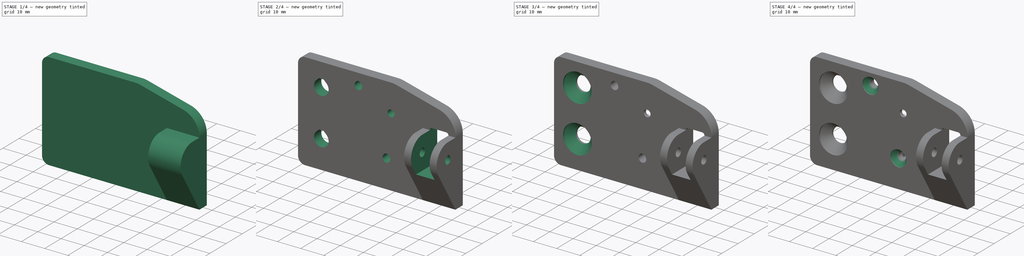
[diagram: build sequence overview — one tinted view per stage of 4, left to right]
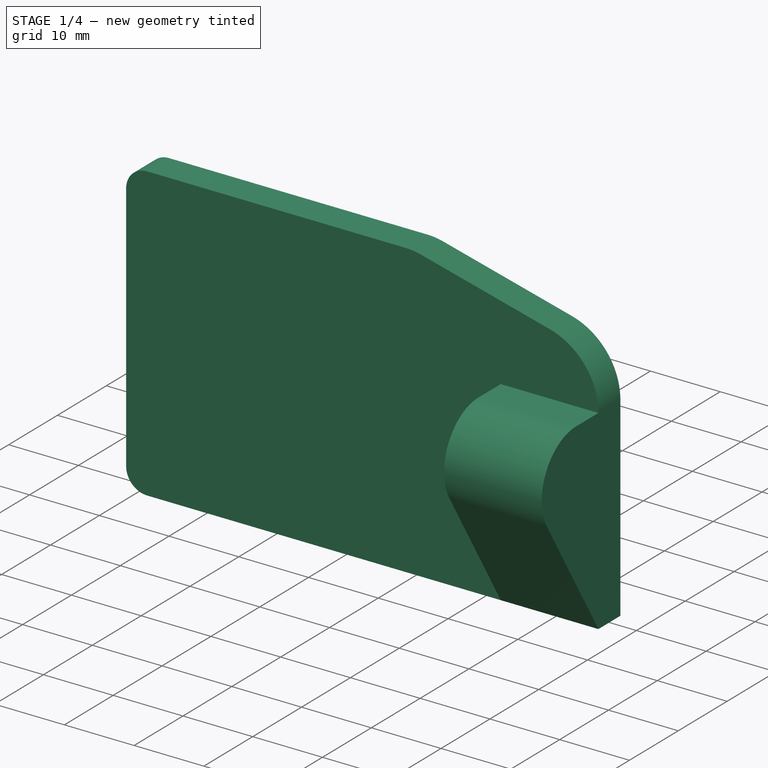
[diagram: stage 1 of 4 — iso view after this stage's code; geometry added in this stage tinted green]
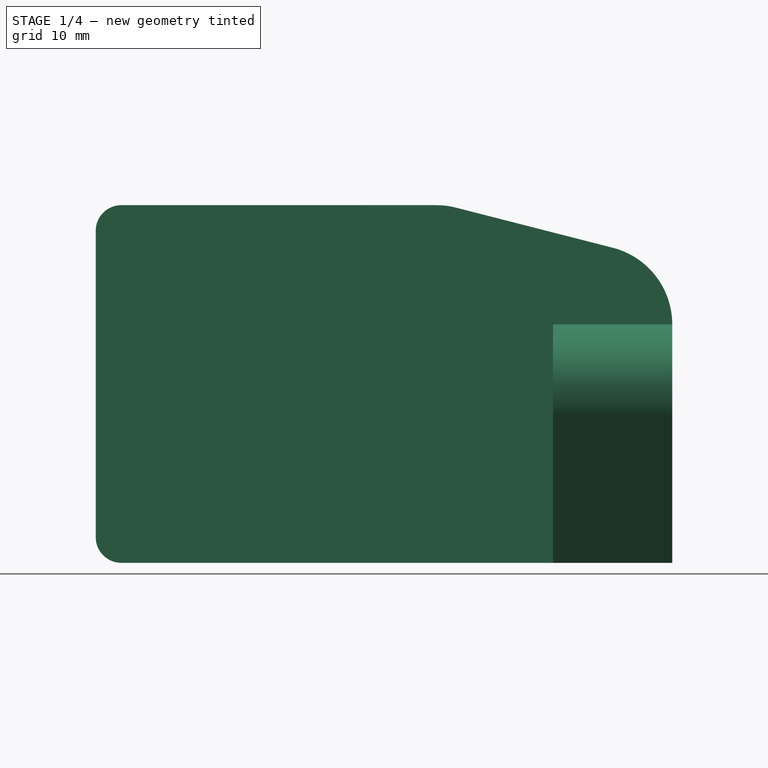
[diagram: stage 1 of 4 — front view after this stage's code; geometry added in this stage tinted green]
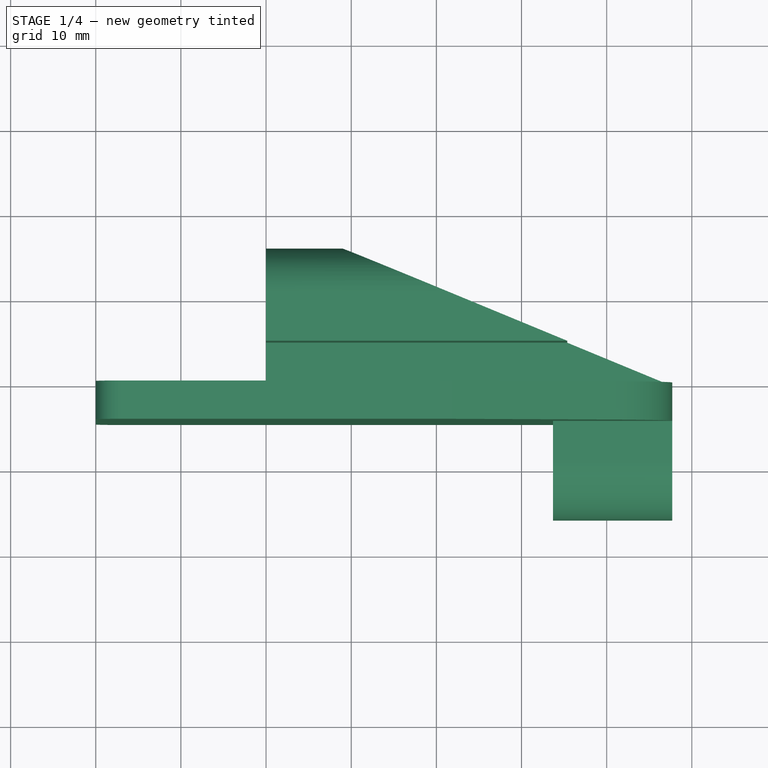
[diagram: stage 1 of 4 — top view after this stage's code; geometry added in this stage tinted green]
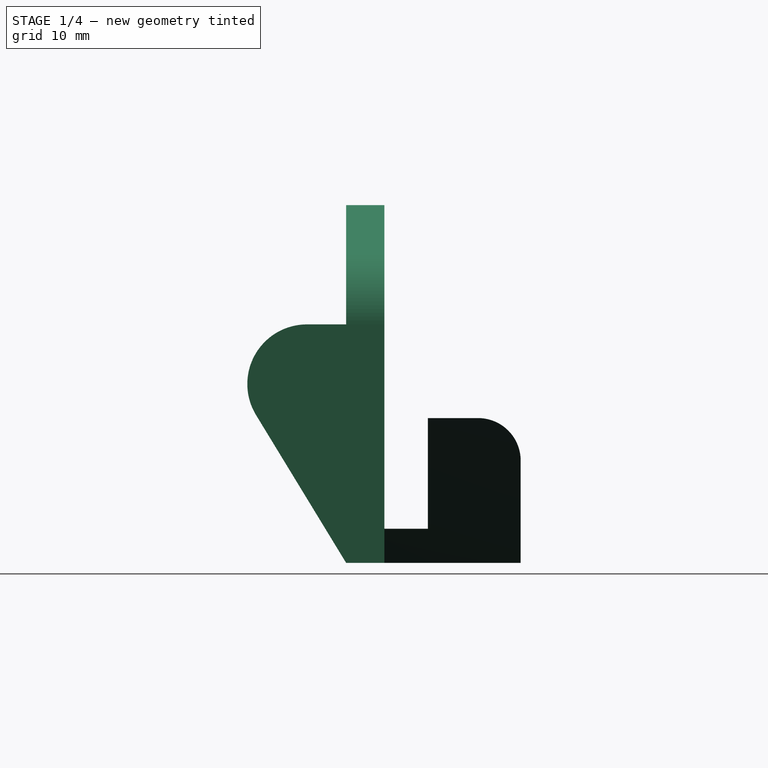
[diagram: stage 1 of 4 — right view after this stage's code; geometry added in this stage tinted green]
FCSTD DOCUMENT  (FreeCAD 0.17R13522 (Git))
Label: 01_547_y-idler-bracket
License: All rights reserved
LicenseURL: http://en.wikipedia.org/wiki/All_rights_reserved
objects: Sketcher::SketchObject×22, PartDesign::Pocket×6, PartDesign::SubtractiveLoft×5, PartDesign::Pad×1, Spreadsheet::Sheet×1, PartDesign::Body×1
note: 47 computed .brp shape members not serialized (recipe doc carries the construction recipe); baked Part::Feature solids carry a one-line shape summary decoded from their .brp

FEATURE [Sketcher::SketchObject] Sketch
  MapMode = 5
  Support = -> [XY_Plane]
  sketch-geometry (9):
    g0: LineSegment StartX=0 StartY=0 StartZ=0 EndX=0 EndY=-4.5 EndZ=0
    g1: LineSegment StartX=0 StartY=-4.5 StartZ=0 EndX=53.7 EndY=-4.5 EndZ=0
    g2: LineSegment StartX=53.7 StartY=-4.5 StartZ=0 EndX=53.7 EndY=-16.1 EndZ=0
    g3: LineSegment StartX=53.7 StartY=-16.1 StartZ=0 EndX=67.7 EndY=-16.1 EndZ=0
    g4: LineSegment StartX=67.7 StartY=-16.1 StartZ=0 EndX=67.7 EndY=0 EndZ=0
    g5: LineSegment StartX=67.7 StartY=0 StartZ=0 EndX=29 EndY=16 EndZ=0
    g6: LineSegment StartX=29 StartY=16 StartZ=0 EndX=20 EndY=16 EndZ=0
    g7: LineSegment StartX=20 StartY=16 StartZ=0 EndX=20 EndY=0 EndZ=0
    g8: LineSegment StartX=20 StartY=0 StartZ=0 EndX=0 EndY=0 EndZ=0
  constraints (26):
    c: Coincident(g0,g1)
    c: Coincident(g1,g2)
    c: Coincident(g2,g3)
    c: Coincident(g3,g4)
    c: Coincident(g4,g5)
    c: Coincident(g5,g6)
    c: Coincident(g6,g7)
    c: Coincident(g7,g8)
    c: Horizontal(g8)
    c: Horizontal(g6)
    c: Horizontal(g1)
    c: Horizontal(g3)
    c: Vertical(g0)
    c: Vertical(g7)
    c: Vertical(g2)
    c: Vertical(g4)
    c: Coincident(g0,g8)
    c: Coincident(g0,g-1)
    c: Distance(g0) = 4.5
    c: Distance(g3) = 14
    c: DistanceX(g-2,g4) = 67.7
    c: Distance(g8) = 20
    c: Distance(g6) = 9
    c: Distance(g7) = 16
    c: PointOnObject(g4,g-1)
    c: Distance(g2) = 11.6
FEATURE [PartDesign::Pad] Pad
  Length = 42
  Length2 = 100
  Profile = -> Sketch
  Type = 0
FEATURE [Sketcher::SketchObject] Sketch001
  MapMode = 5
  Placement = pos=(0,0,0) rot=(1,0,0;1.5708rad)
  Support = -> [XZ_Plane]
  sketch-geometry (13):
    g0: LineSegment StartX=-6.5 StartY=46 StartZ=0 EndX=73.5 EndY=46 EndZ=0
    g1: LineSegment StartX=73.5 StartY=46 StartZ=0 EndX=73.5 EndY=-4 EndZ=0
    g2: LineSegment StartX=73.5 StartY=-4 StartZ=0 EndX=-6.5 EndY=-4 EndZ=0
    g3: LineSegment StartX=-6.5 StartY=-4 StartZ=0 EndX=-6.5 EndY=46 EndZ=0
    g4: ArcOfCircle CenterX=3 CenterY=3 CenterZ=0 NormalX=0 NormalY=0 NormalZ=1 AngleXU=0 Radius=3 StartAngle=3.14159 EndAngle=4.71239
    g5: LineSegment StartX=0 StartY=3 StartZ=0 EndX=0 EndY=39 EndZ=0
    g6: ArcOfCircle CenterX=3 CenterY=39 CenterZ=0 NormalX=0 NormalY=0 NormalZ=1 AngleXU=0 Radius=3 StartAngle=1.5708 EndAngle=3.14159
    g7: LineSegment StartX=3 StartY=42 StartZ=0 EndX=40 EndY=42 EndZ=0
    g8: ArcOfCircle CenterX=40 CenterY=32.7101 CenterZ=0 NormalX=0 NormalY=0 NormalZ=1 AngleXU=0 Radius=9.28988 StartAngle=1.32033 EndAngle=1.5708
    g9: LineSegment StartX=42.3026 StartY=41.7101 StartZ=0 EndX=60.7127 EndY=37 EndZ=0
    g10: ArcOfCircle CenterX=58.4101 CenterY=28 CenterZ=0 NormalX=0 NormalY=0 NormalZ=1 AngleXU=0 Radius=9.28988 StartAngle=0 EndAngle=1.32033
    g11: LineSegment StartX=67.7 StartY=28 StartZ=0 EndX=67.7 EndY=0 EndZ=0
    g12: LineSegment StartX=67.7 StartY=0 StartZ=0 EndX=3 EndY=0 EndZ=0
  constraints (35):
    c: Coincident(g0,g1)
    c: Coincident(g1,g2)
    c: Coincident(g2,g3)
    c: Coincident(g3,g0)
    c: Horizontal(g0)
    c: Horizontal(g2)
    c: Vertical(g1)
    c: Vertical(g3)
    c: Distance(g0) = 80
    c: Distance(g3) = 50
    c: DistanceY(g-1,g2) = -4
    c: DistanceX(g-2,g2) = -6.5
    c: Coincident(g11,g12)
    c: Tangent(g5,g6) = 1.5708
    c: Tangent(g6,g7) = 1.5708
    c: Tangent(g7,g8) = 1.5708
    c: Tangent(g8,g9) = 1.5708
    c: Tangent(g9,g10) = 1.5708
    c: Tangent(g11,g10) = 1.5708
    c: Tangent(g12,g4) = 1.5708
    c: Tangent(g4,g5) = 1.5708
    c: Vertical(g5)
    c: Vertical(g11)
    c: Horizontal(g7)
    c: Horizontal(g12)
    c: Radius(g6) = 3
    c: Equal(g6,g4)
    c: PointOnObject(g4,g-1)
    c: PointOnObject(g4,g-2)
    c: DistanceX(g-2,g11) = 67.7
    c: DistanceY(g-1,g6) = 42
    c: Distance(g9,g7) = 5
    c: DistanceY(g-1,g10) = 28
    c: DistanceX(g-2,g8) = 40
    c: Equal(g8,g10)
FEATURE [PartDesign::Pocket] Pocket
  BaseFeature = -> Pad
  Length = 5
  Length2 = 100
  Midplane = true
  Profile = -> Sketch001
  Type = 1
FEATURE [Sketcher::SketchObject] Sketch002
  MapMode = 5
  Placement = pos=(0,0,0) rot=(0.57735,0.57735,0.57735;2.0944rad)
  Support = -> [YZ_Plane]
  sketch-geometry (17):
    g0: Circle [constr] CenterX=-9.1 CenterY=21 CenterZ=0 NormalX=0 NormalY=0 NormalZ=1 AngleXU=0 Radius=1.65
    g1: ArcOfCircle CenterX=-9.1 CenterY=21 CenterZ=0 NormalX=0 NormalY=0 NormalZ=1 AngleXU=0 Radius=7 StartAngle=1.5708 EndAngle=3.68889
    g2: LineSegment StartX=-15.0775 StartY=17.3573 StartZ=0 EndX=-4.5 EndY=0 EndZ=0
    g3: LineSegment StartX=-4.5 StartY=0 StartZ=0 EndX=16 EndY=0 EndZ=0
    g4: LineSegment StartX=16 StartY=0 StartZ=0 EndX=16 EndY=12 EndZ=0
    g5: LineSegment StartX=11 StartY=17 StartZ=0 EndX=5.1 EndY=17 EndZ=0
    g6: LineSegment StartX=5.1 StartY=17 StartZ=0 EndX=5.1 EndY=4 EndZ=0
    g7: LineSegment StartX=5.1 StartY=4 StartZ=0 EndX=0 EndY=4 EndZ=0
    g8: LineSegment StartX=0 StartY=4 StartZ=0 EndX=0 EndY=42 EndZ=0
    g9: LineSegment StartX=0 StartY=42 StartZ=0 EndX=-4.5 EndY=42 EndZ=0
    g10: LineSegment StartX=-4.5 StartY=42 StartZ=0 EndX=-4.5 EndY=28 EndZ=0
    g11: LineSegment StartX=-9.1 StartY=28 StartZ=0 EndX=-4.5 EndY=28 EndZ=0
    g12: ArcOfCircle CenterX=11 CenterY=12 CenterZ=0 NormalX=0 NormalY=0 NormalZ=1 AngleXU=0 Radius=5 StartAngle=0 EndAngle=1.5708
    g13: LineSegment StartX=-22.5 StartY=45 StartZ=0 EndX=22.5 EndY=45 EndZ=0
    g14: LineSegment StartX=22.5 StartY=45 StartZ=0 EndX=22.5 EndY=-5 EndZ=0
    g15: LineSegment StartX=22.5 StartY=-5 StartZ=0 EndX=-22.5 EndY=-5 EndZ=0
    g16: LineSegment StartX=-22.5 StartY=-5 StartZ=0 EndX=-22.5 EndY=45 EndZ=0
  constraints (48):
    c: Coincident(g2,g3)
    c: Coincident(g3,g4)
    c: Coincident(g5,g6)
    c: Coincident(g6,g7)
    c: Coincident(g7,g8)
    c: Coincident(g8,g9)
    c: Coincident(g9,g10)
    c: PointOnObject(g8,g-2)
    c: PointOnObject(g2,g-1)
    c: Horizontal(g5)
    c: Horizontal(g7)
    c: Horizontal(g3)
    c: Horizontal(g9)
    c: Coincident(g11,g10)
    c: Horizontal(g11)
    c: Vertical(g10)
    c: Vertical(g8)
    c: Vertical(g6)
    c: Vertical(g4)
    c: Tangent(g11,g1) = 1.5708
    c: Tangent(g2,g1) = -1.5708
    c: Coincident(g0,g1)
    c: Distance(g9) = 4.5
    c: DistanceY(g-1,g10) = 28
    c: DistanceX(g-2,g0) = -9.1
    c: Radius(g1) = 7
    c: DistanceY(g-1,g8) = 42
    c: Radius(g0) = 1.65
    c: Tangent(g5,g12) = -1.5708
    c: Tangent(g4,g12) = -1.5708
    c: Distance(g4,g6) = 10.9
    c: Distance(g7) = 5.1
    c: DistanceY(g-1,g12) = 12
    c: DistanceY(g-1,g5) = 17
    c: DistanceY(g-1,g7) = 4
    c: PointOnObject(g2,g10)
    c: Coincident(g13,g14)
    c: Coincident(g14,g15)
    c: Coincident(g15,g16)
    c: Coincident(g16,g13)
    c: Horizontal(g13)
    c: Horizontal(g15)
    c: Vertical(g14)
    c: Vertical(g16)
    c: Symmetric(g13,g13,g-2)
    c: Distance(g13) = 45
    c: DistanceY(g-1,g14) = -5
    c: Distance(g16) = 50
FEATURE [PartDesign::Pocket] Pocket001
  BaseFeature = -> Pocket
  Length = 5
  Length2 = 100
  Midplane = true
  Profile = -> Sketch002
  Type = 1
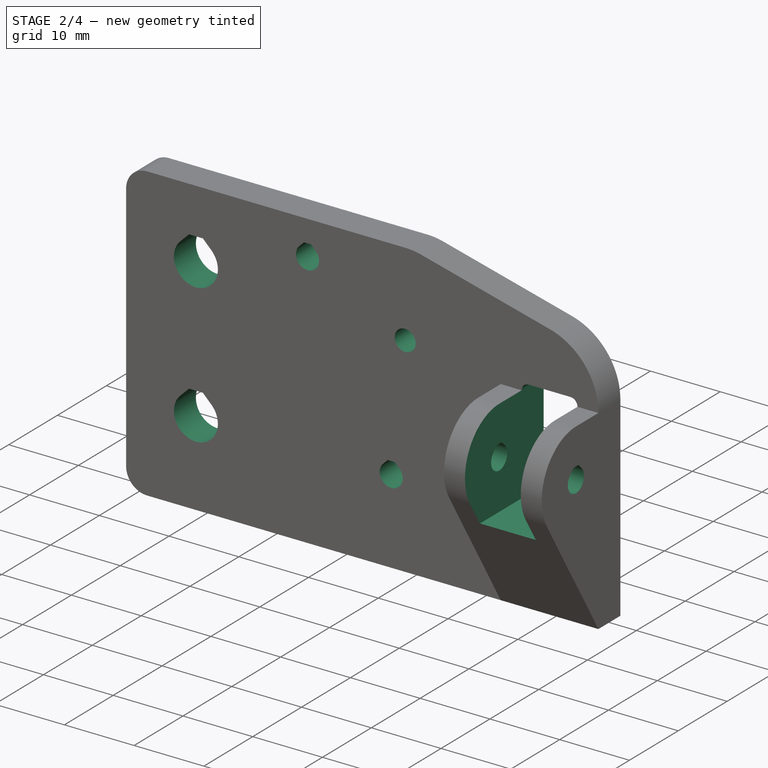
[diagram: stage 2 of 4 — iso view after this stage's code; geometry added in this stage tinted green]
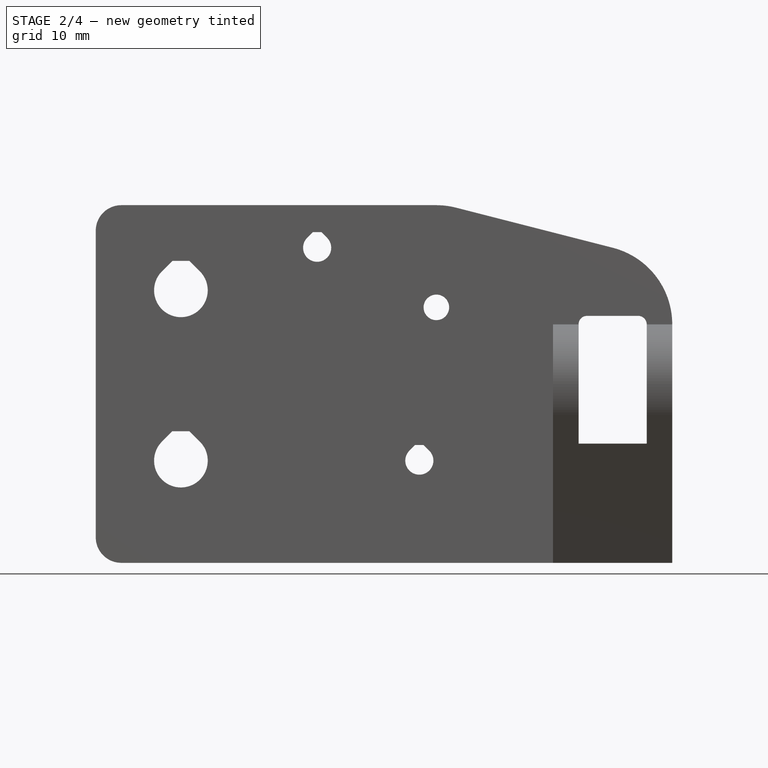
[diagram: stage 2 of 4 — front view after this stage's code; geometry added in this stage tinted green]
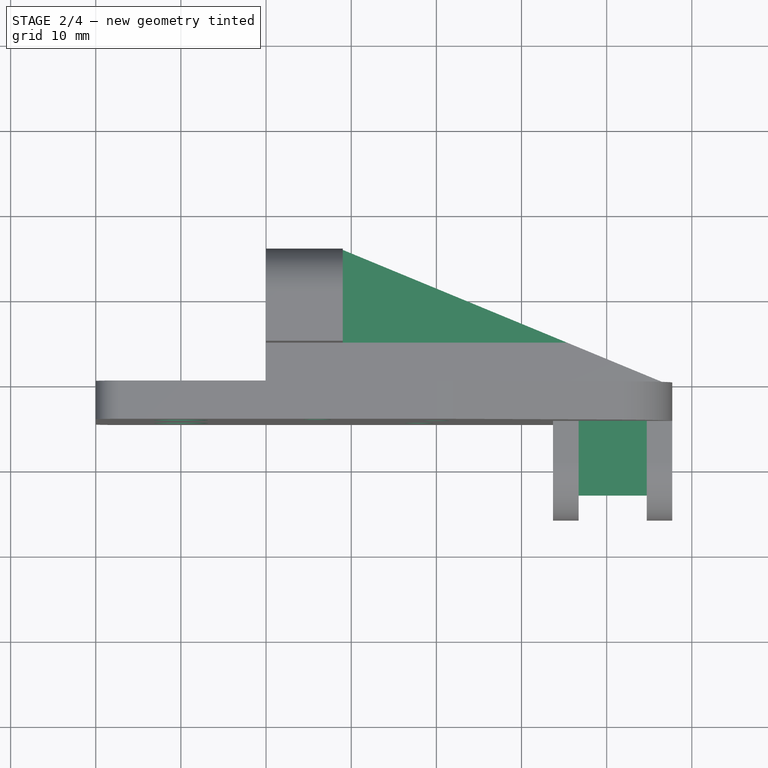
[diagram: stage 2 of 4 — top view after this stage's code; geometry added in this stage tinted green]
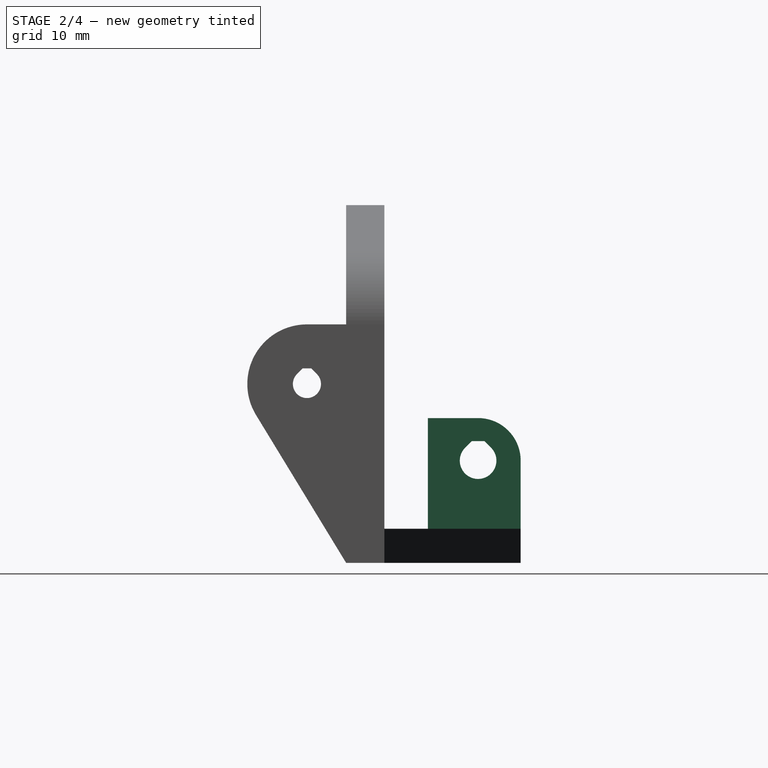
[diagram: stage 2 of 4 — right view after this stage's code; geometry added in this stage tinted green]
FEATURE [Sketcher::SketchObject] Sketch003
  MapMode = 5
  Placement = pos=(0,0,0) rot=(1,0,0;1.5708rad)
  Support = -> [XZ_Plane]
  sketch-geometry (8):
    g0: LineSegment StartX=0 StartY=45 StartZ=0 EndX=20 EndY=45 EndZ=0
    g1: LineSegment StartX=20 StartY=45 StartZ=0 EndX=20 EndY=4 EndZ=0
    g2: LineSegment StartX=20 StartY=4 StartZ=0 EndX=0 EndY=4 EndZ=0
    g3: LineSegment StartX=0 StartY=4 StartZ=0 EndX=0 EndY=45 EndZ=0
    g4: LineSegment StartX=29 StartY=45 StartZ=0 EndX=70 EndY=45 EndZ=0
    g5: LineSegment StartX=70 StartY=45 StartZ=0 EndX=70 EndY=4 EndZ=0
    g6: LineSegment StartX=70 StartY=4 StartZ=0 EndX=29 EndY=4 EndZ=0
    g7: LineSegment StartX=29 StartY=4 StartZ=0 EndX=29 EndY=45 EndZ=0
  constraints (24):
    c: Coincident(g0,g1)
    c: Coincident(g1,g2)
    c: Coincident(g2,g3)
    c: Coincident(g3,g0)
    c: Horizontal(g0)
    c: Horizontal(g2)
    c: Vertical(g1)
    c: Vertical(g3)
    c: Coincident(g4,g5)
    c: Coincident(g5,g6)
    c: Coincident(g6,g7)
    c: Coincident(g7,g4)
    c: Horizontal(g4)
    c: Horizontal(g6)
    c: Vertical(g5)
    c: Vertical(g7)
    c: PointOnObject(g0,g-2)
    c: PointOnObject(g4,g0)
    c: Equal(g3,g5)
    c: Distance(g4,g1) = 9
    c: Distance(g0) = 20
    c: DistanceX(g-2,g4) = 70
    c: DistanceY(g-1,g2) = 4
    c: DistanceY(g-1,g0) = 45
FEATURE [PartDesign::Pocket] Pocket002
  BaseFeature = -> Pocket001
  Length = 5
  Length2 = 100
  Profile = -> Sketch003
  Type = 1
FEATURE [Spreadsheet::Sheet] Spreadsheet  label="sheet1"
  cells = A1=M6Clearance; B1(M6Clearance)=6.2999999999999998; A2=M4Clearance; B2(M4Clearance)=4.2999999999999998; A3=M3Clearance; B3(M3Clearance)=3.2999999999999998; A4=dx; B4(dx)=67.700000000000003; A5=dy; B5(dy)==16 + 4.5 + 11.6; A6=dz; B6(dz)=42; A7=EndPlateThickness; B7(EndPlateThickness)=4.5; A8=BaseThickness; B8(BaseThickness)=4; A9=ExtruBolt1X; B9(ExtruBolt1X)=10; A10=ExtruBolt1Z; B10(ExtruBolt1Z)=12; A11=ExtruBolt2X; B11(ExtruBolt2X)=10; A12=ExtruBolt2Z; B12(ExtruBolt2Z)=32; A13=PlateBolt1X; B13(PlateBolt1X)=38; A14=PlateBolt1Z; B14(PlateBolt1Z)=12; A15=PlateBolt2X; B15(PlateBolt2X)=26; A16=PlateBolt2Z; B16(PlateBolt2Z)=37; A17=BarHoleX; B17(BarHoleX)=40; A18=BarHoleZ; B18(BarHoleZ)=30; A19=BarClearance; B19(BarClearance)=12.699999999999999; A20=RailBoltY; B20(RailBoltY)=11; A21=RailBoltZ; B21(RailBoltZ)=12; A22=IdlerBoltY; B22(IdlerBoltY)=-9.0999999999999996; A23=IdlerBoltZ; B23(IdlerBoltZ)=21
FEATURE [Sketcher::SketchObject] Sketch004
  MapMode = 5
  Placement = pos=(0,0,0) rot=(1,0,0;1.5708rad)
  Support = -> [XZ_Plane]
  expr: Constraints[63] = sheet1.PlateBolt1Z
  expr: Constraints[62] = sheet1.PlateBolt1X
  expr: Constraints[61] = sheet1.PlateBolt2Z
  expr: Constraints[37] = sheet1.ExtruBolt1X
  expr: Constraints[39] = sheet1.ExtruBolt1Z
  expr: Constraints[35] = sheet1.M6Clearance / 2
  expr: Constraints[2] = sheet1.BarHoleZ
  expr: Constraints[1] = sheet1.BarHoleX
  expr: Constraints[15] = sheet1.dx - 14 + 3
  expr: Constraints[60] = sheet1.PlateBolt2X
  expr: Constraints[38] = sheet1.ExtruBolt2X
  expr: Constraints[40] = sheet1.ExtruBolt2Z
  expr: Constraints[55] = sheet1.M3Clearance / 2
  sketch-geometry (23):
    g0: Circle CenterX=40 CenterY=30 CenterZ=0 NormalX=0 NormalY=0 NormalZ=1 AngleXU=0 Radius=1.5
    g1: LineSegment StartX=56.7 StartY=28 StartZ=0 EndX=56.7 EndY=14 EndZ=0
    g2: LineSegment StartX=56.7 StartY=14 StartZ=0 EndX=64.7 EndY=14 EndZ=0
    g3: LineSegment StartX=64.7 StartY=14 StartZ=0 EndX=64.7 EndY=28 EndZ=0
    g4: ArcOfCircle CenterX=57.7 CenterY=28 CenterZ=0 NormalX=0 NormalY=0 NormalZ=1 AngleXU=0 Radius=1 StartAngle=1.5708 EndAngle=3.14159
    g5: ArcOfCircle CenterX=63.7 CenterY=28 CenterZ=0 NormalX=0 NormalY=0 NormalZ=1 AngleXU=0 Radius=1 StartAngle=0 EndAngle=1.5708
    g6: LineSegment StartX=57.7 StartY=29 StartZ=0 EndX=63.7 EndY=29 EndZ=0
    g7: ArcOfCircle CenterX=10 CenterY=32 CenterZ=0 NormalX=0 NormalY=0 NormalZ=1 AngleXU=0 Radius=3.15 StartAngle=2.35619 EndAngle=7.06858
    g8: ArcOfCircle CenterX=10 CenterY=12 CenterZ=0 NormalX=0 NormalY=0 NormalZ=1 AngleXU=0 Radius=3.15 StartAngle=2.35619 EndAngle=7.06858
    g9: LineSegment StartX=7.77261 StartY=34.2274 StartZ=0 EndX=9 EndY=35.4548 EndZ=0
    g10: LineSegment StartX=9 StartY=35.4548 StartZ=0 EndX=11 EndY=35.4548 EndZ=0
    g11: LineSegment StartX=11 StartY=35.4548 StartZ=0 EndX=12.2274 EndY=34.2274 EndZ=0
    g12: LineSegment StartX=7.77261 StartY=14.2274 StartZ=0 EndX=9 EndY=15.4548 EndZ=0
    g13: LineSegment StartX=9 StartY=15.4548 StartZ=0 EndX=11 EndY=15.4548 EndZ=0
    g14: LineSegment StartX=11 StartY=15.4548 StartZ=0 EndX=12.2274 EndY=14.2274 EndZ=0
    g15: ArcOfCircle CenterX=26 CenterY=37 CenterZ=0 NormalX=0 NormalY=0 NormalZ=1 AngleXU=0 Radius=1.65 StartAngle=2.35619 EndAngle=7.06858
    g16: ArcOfCircle CenterX=38 CenterY=12 CenterZ=0 NormalX=0 NormalY=0 NormalZ=1 AngleXU=0 Radius=1.65 StartAngle=2.35619 EndAngle=7.06858
    g17: LineSegment StartX=24.8333 StartY=38.1667 StartZ=0 EndX=25.5 EndY=38.8335 EndZ=0
    g18: LineSegment StartX=25.5 StartY=38.8335 StartZ=0 EndX=26.5 EndY=38.8335 EndZ=0
    g19: LineSegment StartX=26.5 StartY=38.8335 StartZ=0 EndX=27.1667 EndY=38.1667 EndZ=0
    g20: LineSegment StartX=36.8333 StartY=13.1667 StartZ=0 EndX=37.5 EndY=13.8335 EndZ=0
    g21: LineSegment StartX=37.5 StartY=13.8335 StartZ=0 EndX=38.5 EndY=13.8335 EndZ=0
    g22: LineSegment StartX=38.5 StartY=13.8335 StartZ=0 EndX=39.1667 EndY=13.1667 EndZ=0
  constraints (64):
    c: Radius(g0) = 1.5
    c: DistanceX(g-2,g0) = 40
    c: DistanceY(g-1,g0) = 30
    c: Coincident(g1,g2)
    c: Coincident(g2,g3)
    c: Horizontal(g2)
    c: Horizontal(g6)
    c: Vertical(g1)
    c: Vertical(g3)
    c: Tangent(g1,g4) = -1.5708
    c: Tangent(g4,g6) = 1.5708
    c: Tangent(g5,g6) = 1.5708
    c: Tangent(g5,g3) = -1.5708
    c: Distance(g5,g2) = 15
    c: Distance(g2) = 8
    c: DistanceX(g-2,g1) = 56.7
    c: DistanceY(g-1,g2) = 14
    c: Radius(g4) = 1
    c: Equal(g4,g5)
    c: Coincident(g9,g10)
    c: Coincident(g10,g11)
    c: Coincident(g12,g13)
    c: Coincident(g13,g14)
    c: Equal(g9,g11)
    c: Equal(g11,g12)
    c: Equal(g12,g14)
    c: Horizontal(g13)
    c: Horizontal(g10)
    c: Tangent(g7,g9) = 1.5708
    c: Tangent(g7,g11) = 1.5708
    c: Tangent(g8,g12) = 1.5708
    c: Tangent(g8,g14) = 1.5708
    c: Equal(g13,g10)
    c: Equal(g13,g10)
    c: Distance(g10) = 2
    c: Radius(g8) = 3.15
    c: Equal(g8,g7)
    c: DistanceX(g-2,g8) = 10
    c: DistanceX(g-2,g7) = 10
    c: DistanceY(g-1,g8) = 12
    c: DistanceY(g-1,g7) = 32
    c: Coincident(g17,g18)
    c: Coincident(g18,g19)
    c: Coincident(g20,g21)
    c: Coincident(g21,g22)
    c: Tangent(g16,g20) = 1.5708
    c: Tangent(g16,g22) = 1.5708
    c: Equal(g20,g22)
    c: Horizontal(g21)
    c: Horizontal(g18)
    c: Equal(g17,g19)
    c: Tangent(g15,g17) = 1.5708
    c: Tangent(g15,g19) = 1.5708
    c: Equal(g18,g21)
    c: Distance(g21) = 1
    c: Radius(g16) = 1.65
    c: Equal(g16,g15)
    c: Angle(g9,g10) = 2.35619
    c: Angle(g17,g18) = 2.35619
    c: Angle(g20,g21) = 2.35619
    c: DistanceX(g-2,g15) = 26
    c: DistanceY(g-1,g15) = 37
    c: DistanceX(g-2,g16) = 38
    c: DistanceY(g-1,g16) = 12
FEATURE [PartDesign::Pocket] Pocket003
  BaseFeature = -> Pocket002
  Length = 5
  Length2 = 100
  Midplane = true
  Profile = -> Sketch004
  Reversed = true
  Type = 1
FEATURE [Sketcher::SketchObject] Sketch005
  MapMode = 5
  Placement = pos=(0,0,0) rot=(0.57735,0.57735,0.57735;2.0944rad)
  Support = -> [YZ_Plane]
  expr: Constraints[21] = sheet1.RailBoltZ
  expr: Constraints[20] = sheet1.RailBoltY
  expr: Constraints[19] = sheet1.IdlerBoltY
  expr: Constraints[17] = sheet1.M4Clearance / 2
  expr: Constraints[18] = sheet1.IdlerBoltZ
  expr: Constraints[10] = sheet1.M3Clearance / 2
  sketch-geometry (8):
    g0: ArcOfCircle CenterX=-9.1 CenterY=21 CenterZ=0 NormalX=0 NormalY=0 NormalZ=1 AngleXU=0 Radius=1.65 StartAngle=2.35619 EndAngle=7.06858
    g1: ArcOfCircle CenterX=11 CenterY=12 CenterZ=0 NormalX=0 NormalY=0 NormalZ=1 AngleXU=0 Radius=2.15 StartAngle=2.35619 EndAngle=7.06858
    g2: LineSegment StartX=-10.2667 StartY=22.1667 StartZ=0 EndX=-9.6 EndY=22.8335 EndZ=0
    g3: LineSegment StartX=-9.6 StartY=22.8335 StartZ=0 EndX=-8.6 EndY=22.8335 EndZ=0
    g4: LineSegment StartX=-8.6 StartY=22.8335 StartZ=0 EndX=-7.93327 EndY=22.1667 EndZ=0
    g5: LineSegment StartX=9.47972 StartY=13.5203 StartZ=0 EndX=10.25 EndY=14.2906 EndZ=0
    g6: LineSegment StartX=10.25 StartY=14.2906 StartZ=0 EndX=11.75 EndY=14.2906 EndZ=0
    g7: LineSegment StartX=11.75 StartY=14.2906 StartZ=0 EndX=12.5203 EndY=13.5203 EndZ=0
  constraints (22):
    c: Coincident(g2,g3)
    c: Coincident(g3,g4)
    c: Coincident(g5,g6)
    c: Coincident(g6,g7)
    c: Horizontal(g3)
    c: Equal(g2,g4)
    c: Tangent(g0,g2) = 1.5708
    c: Tangent(g0,g4) = 1.5708
    c: Distance(g3) = 1
    c: Angle(g2,g3) = 2.35619
    c: Radius(g0) = 1.65
    c: Equal(g5,g7)
    c: Horizontal(g6)
    c: Angle(g5,g6) = 2.35619
    c: Tangent(g1,g5) = 1.5708
    c: Tangent(g1,g7) = 1.5708
    c: Distance(g6) = 1.5
    c: Radius(g1) = 2.15
    c: DistanceY(g-1,g0) = 21
    c: DistanceX(g-2,g0) = -9.1
    c: DistanceX(g-2,g1) = 11
    c: DistanceY(g-1,g1) = 12
FEATURE [PartDesign::Pocket] Pocket004
  BaseFeature = -> Pocket003
  Length = 5
  Length2 = 100
  Profile = -> Sketch005
  Reversed = true
  Type = 1
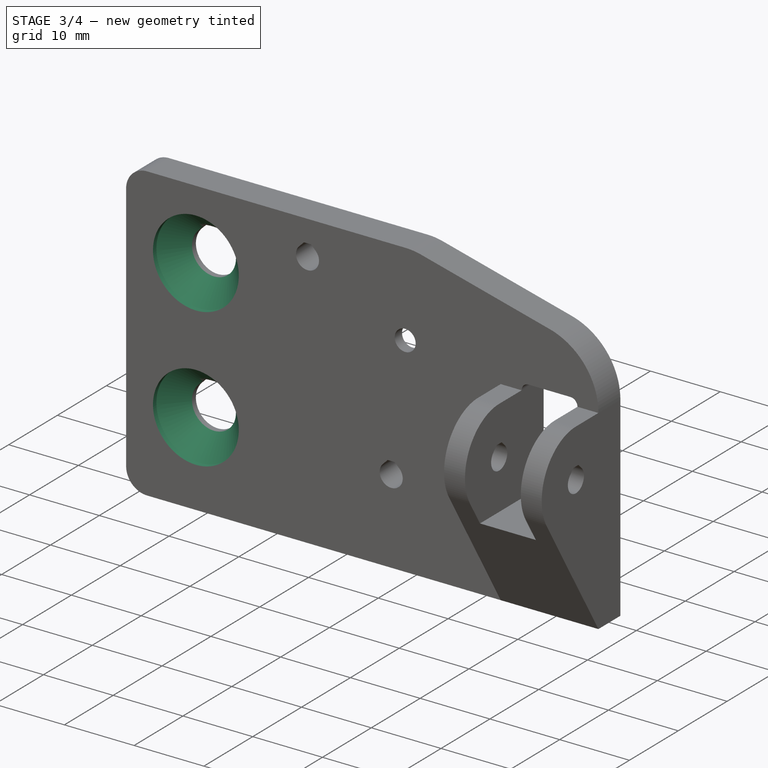
[diagram: stage 3 of 4 — iso view after this stage's code; geometry added in this stage tinted green]
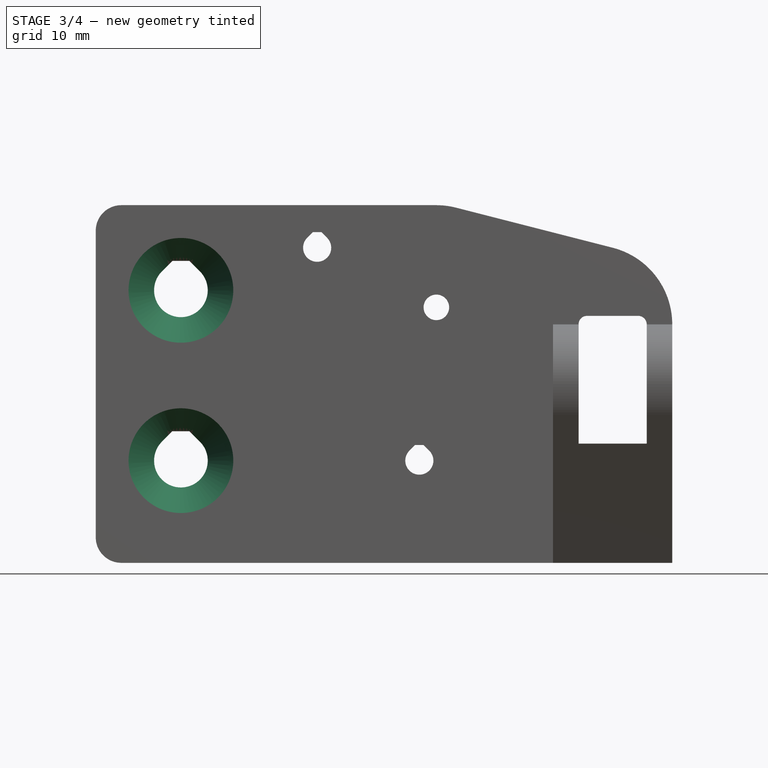
[diagram: stage 3 of 4 — front view after this stage's code; geometry added in this stage tinted green]
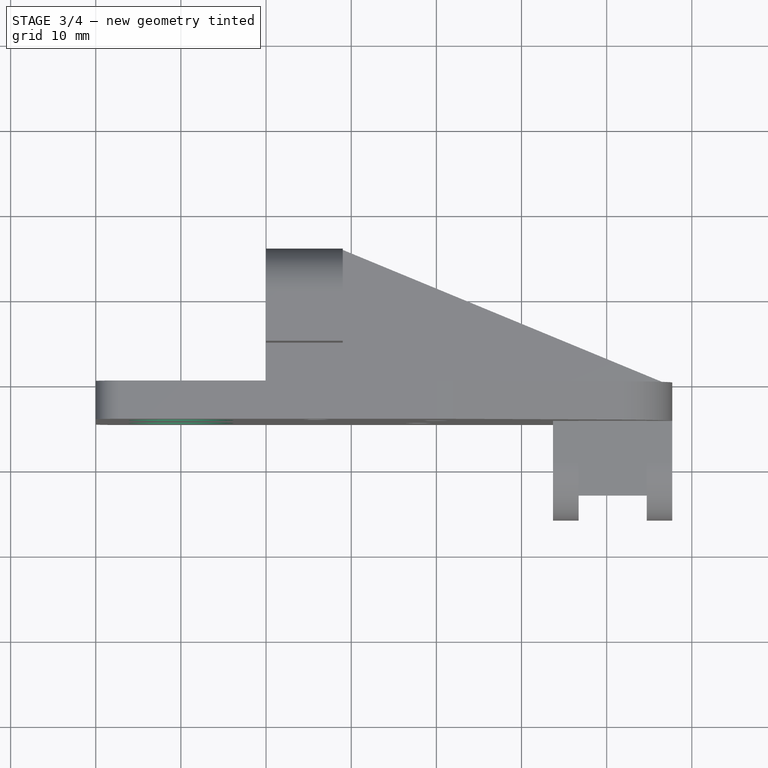
[diagram: stage 3 of 4 — top view after this stage's code; geometry added in this stage tinted green]
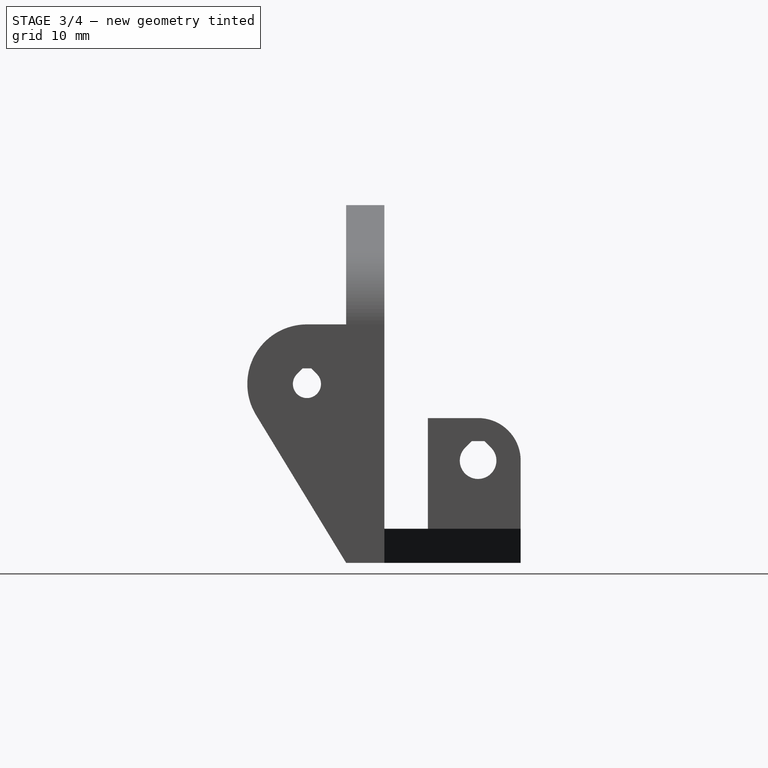
[diagram: stage 3 of 4 — right view after this stage's code; geometry added in this stage tinted green]
FEATURE [Sketcher::SketchObject] Sketch006
  MapMode = 5
  Placement = pos=(0,0,0) rot=(1,0,0;1.5708rad)
  Support = -> [XZ_Plane]
  expr: Constraints[2] = sheet1.BarHoleZ
  expr: Constraints[1] = sheet1.BarHoleX
  expr: Constraints[0] = sheet1.BarClearance / 2
  sketch-geometry (1):
    g0: Circle CenterX=40 CenterY=30 CenterZ=0 NormalX=0 NormalY=0 NormalZ=1 AngleXU=0 Radius=6.35
  constraints (3):
    c: Radius(g0) = 6.35
    c: DistanceX(g-2,g0) = 40
    c: DistanceY(g-1,g0) = 30
FEATURE [PartDesign::Pocket] Pocket005
  BaseFeature = -> Pocket004
  Length = 3
  Length2 = 100
  Profile = -> Sketch006
  Reversed = true
  Type = 0
FEATURE [Sketcher::SketchObject] Sketch007
  AttachmentOffset = pos=(0,0,0.8) rot=(0,0,1;0rad)
  MapMode = 5
  Placement = pos=(0,-0.8,0) rot=(1,0,0;1.5708rad)
  Support = -> [XZ_Plane]
  expr: Constraints[2] = sheet1.ExtruBolt1Z
  expr: Constraints[1] = sheet1.ExtruBolt1X
  expr: Constraints[0] = sheet1.M6Clearance / 2
  sketch-geometry (1):
    g0: Circle CenterX=10 CenterY=12 CenterZ=0 NormalX=0 NormalY=0 NormalZ=1 AngleXU=0 Radius=3.15
  constraints (3):
    c: Radius(g0) = 3.15
    c: DistanceX(g-2,g0) = 10
    c: DistanceY(g-1,g0) = 12
FEATURE [Sketcher::SketchObject] Sketch008
  AttachmentOffset = pos=(0,0,3.8) rot=(0,0,1;0rad)
  MapMode = 5
  Placement = pos=(0,-3.8,0) rot=(1,0,0;1.5708rad)
  Support = -> [XZ_Plane]
  expr: AttachmentOffset.Base.z = 0.80000000000000004 + 3
  expr: Constraints[2] = sheet1.ExtruBolt1Z
  expr: Constraints[1] = sheet1.ExtruBolt1X
  expr: Constraints[0] = sheet1.M6Clearance / 2 + 3
  sketch-geometry (1):
    g0: Circle CenterX=10 CenterY=12 CenterZ=0 NormalX=0 NormalY=0 NormalZ=1 AngleXU=0 Radius=6.15
  constraints (3):
    c: Radius(g0) = 6.15
    c: DistanceX(g-2,g0) = 10
    c: DistanceY(g-1,g0) = 12
FEATURE [Sketcher::SketchObject] Sketch009
  AttachmentOffset = pos=(0,0,42) rot=(0,0,1;0rad)
  MapMode = 5
  Placement = pos=(0,-42,-4e-12) rot=(1,0,0;1.5708rad)
  Support = -> [XZ_Plane]
  expr: AttachmentOffset.Base.z = sheet1.dz
  expr: Constraints[2] = sheet1.ExtruBolt1Z
  expr: Constraints[1] = sheet1.ExtruBolt1X
  expr: Constraints[0] = sheet1.M6Clearance / 2 + 3
  sketch-geometry (1):
    g0: Circle CenterX=10 CenterY=12 CenterZ=0 NormalX=0 NormalY=0 NormalZ=1 AngleXU=0 Radius=6.15
  constraints (3):
    c: Radius(g0) = 6.15
    c: DistanceX(g-2,g0) = 10
    c: DistanceY(g-1,g0) = 12
FEATURE [PartDesign::SubtractiveLoft] SubtractiveLoft
  BaseFeature = -> Pocket005
  Closed = true
  Profile = -> Sketch007
  Ruled = true
  Sections = -> [Sketch008,Sketch009]
FEATURE [Sketcher::SketchObject] Sketch010
  AttachmentOffset = pos=(0,0,0.8) rot=(0,0,1;0rad)
  MapMode = 5
  Placement = pos=(0,-0.8,0) rot=(1,0,0;1.5708rad)
  Support = -> [XZ_Plane]
  expr: Constraints[2] = sheet1.ExtruBolt2Z
  expr: Constraints[1] = sheet1.ExtruBolt2X
  expr: Constraints[0] = sheet1.M6Clearance / 2
  sketch-geometry (1):
    g0: Circle CenterX=10 CenterY=32 CenterZ=0 NormalX=0 NormalY=0 NormalZ=1 AngleXU=0 Radius=3.15
  constraints (3):
    c: Radius(g0) = 3.15
    c: DistanceX(g-2,g0) = 10
    c: DistanceY(g-1,g0) = 32
FEATURE [Sketcher::SketchObject] Sketch011
  AttachmentOffset = pos=(0,0,3.8) rot=(0,0,1;0rad)
  MapMode = 5
  Placement = pos=(0,-3.8,0) rot=(1,0,0;1.5708rad)
  Support = -> [XZ_Plane]
  expr: AttachmentOffset.Base.z = 0.80000000000000004 + 3
  expr: Constraints[2] = sheet1.ExtruBolt2Z
  expr: Constraints[1] = sheet1.ExtruBolt2X
  expr: Constraints[0] = sheet1.M6Clearance / 2 + 3
  sketch-geometry (1):
    g0: Circle CenterX=10 CenterY=32 CenterZ=0 NormalX=0 NormalY=0 NormalZ=1 AngleXU=0 Radius=6.15
  constraints (3):
    c: Radius(g0) = 6.15
    c: DistanceX(g-2,g0) = 10
    c: DistanceY(g-1,g0) = 32
FEATURE [Sketcher::SketchObject] Sketch012
  AttachmentOffset = pos=(0,0,42) rot=(0,0,1;0rad)
  MapMode = 5
  Placement = pos=(0,-42,-4e-12) rot=(1,0,0;1.5708rad)
  Support = -> [XZ_Plane]
  expr: AttachmentOffset.Base.z = sheet1.dz
  expr: Constraints[2] = sheet1.ExtruBolt2Z
  expr: Constraints[1] = sheet1.ExtruBolt2X
  expr: Constraints[0] = sheet1.M6Clearance / 2 + 3
  sketch-geometry (1):
    g0: Circle CenterX=10 CenterY=32 CenterZ=0 NormalX=0 NormalY=0 NormalZ=1 AngleXU=0 Radius=6.15
  constraints (3):
    c: Radius(g0) = 6.15
    c: DistanceX(g-2,g0) = 10
    c: DistanceY(g-1,g0) = 32
FEATURE [PartDesign::SubtractiveLoft] SubtractiveLoft001
  BaseFeature = -> SubtractiveLoft
  Closed = true
  Profile = -> Sketch010
  Ruled = true
  Sections = -> [Sketch011,Sketch012]
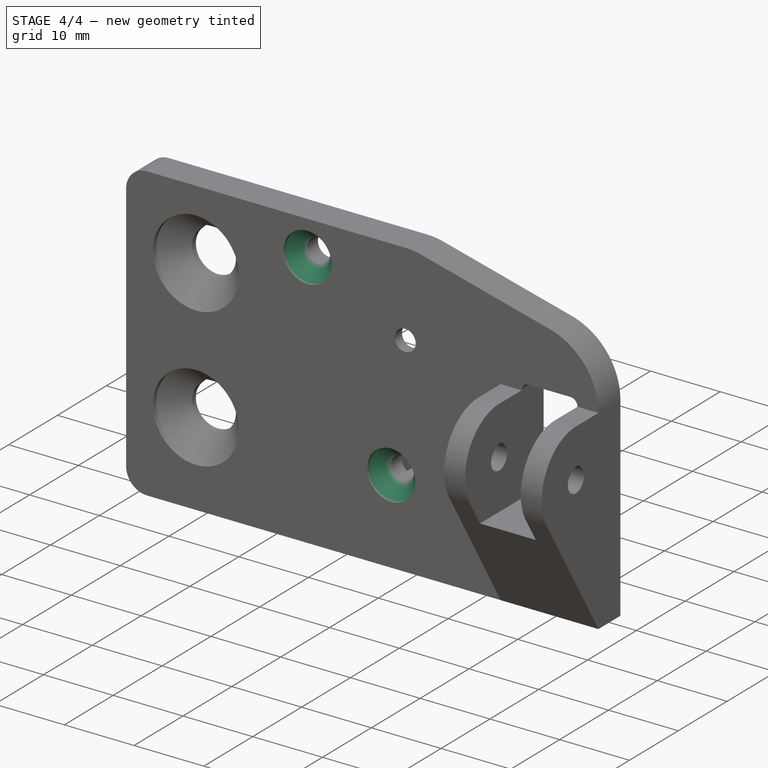
[diagram: stage 4 of 4 — iso view after this stage's code; geometry added in this stage tinted green]
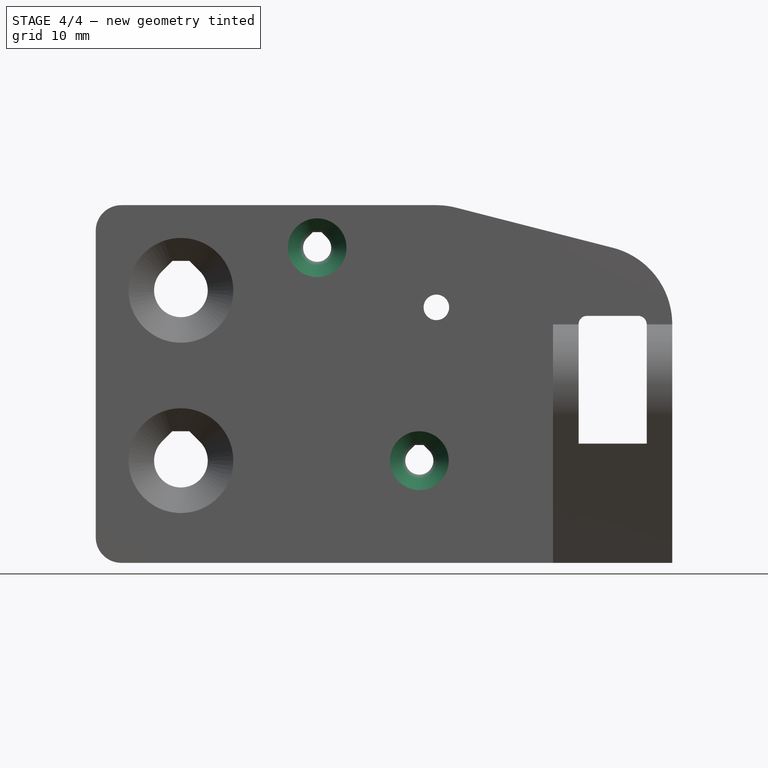
[diagram: stage 4 of 4 — front view after this stage's code; geometry added in this stage tinted green]
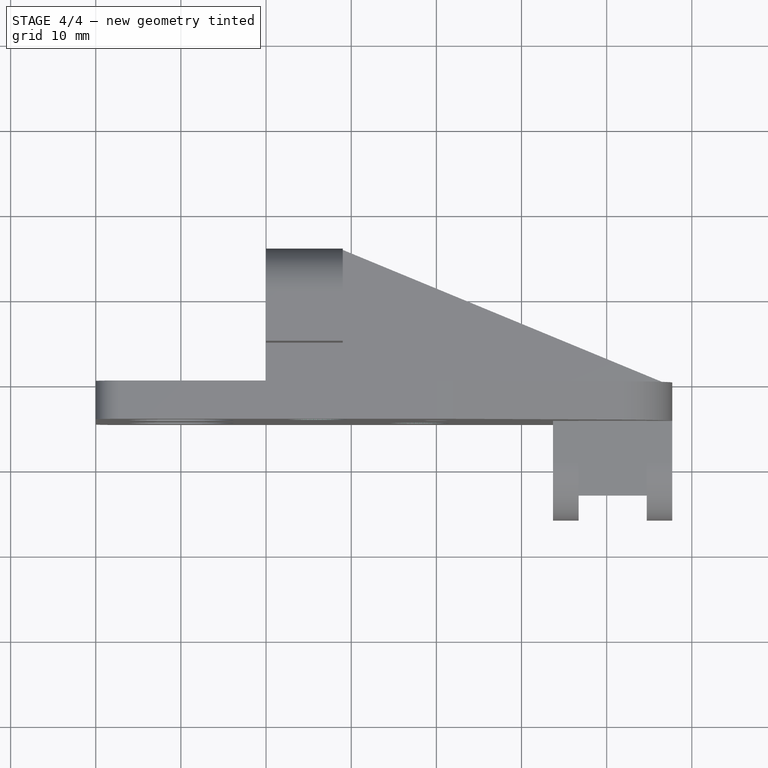
[diagram: stage 4 of 4 — top view after this stage's code; geometry added in this stage tinted green]
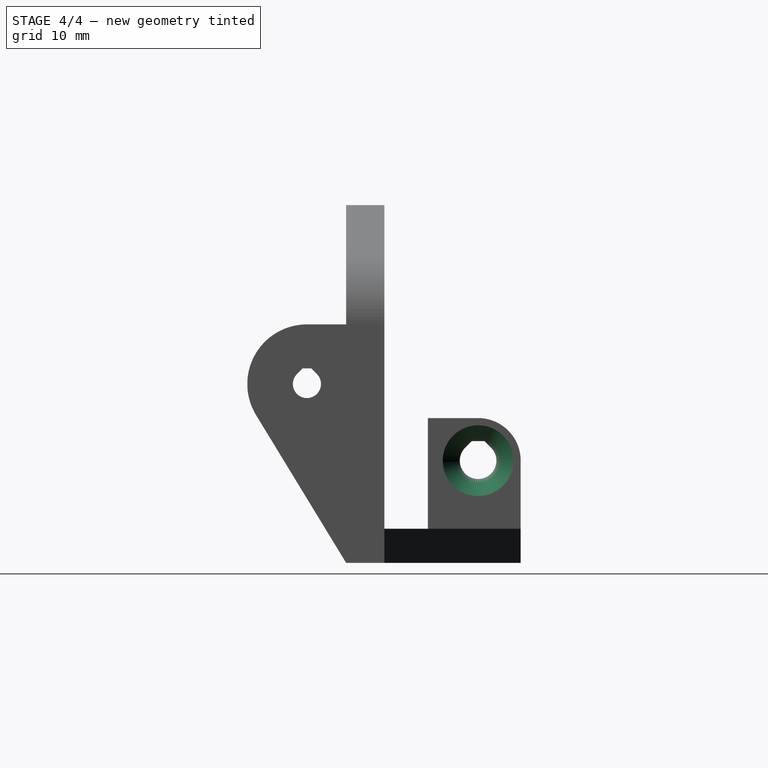
[diagram: stage 4 of 4 — right view after this stage's code; geometry added in this stage tinted green]
FEATURE [Sketcher::SketchObject] Sketch013
  AttachmentOffset = pos=(0,0,2.2) rot=(0,0,1;0rad)
  MapMode = 5
  Placement = pos=(0,-2.2,0) rot=(1,0,0;1.5708rad)
  Support = -> [XZ_Plane]
  expr: Constraints[2] = sheet1.PlateBolt1Z
  expr: Constraints[1] = sheet1.PlateBolt1X
  expr: Constraints[0] = sheet1.M3Clearance / 2
  sketch-geometry (1):
    g0: Circle CenterX=38 CenterY=12 CenterZ=0 NormalX=0 NormalY=0 NormalZ=1 AngleXU=0 Radius=1.65
  constraints (3):
    c: Radius(g0) = 1.65
    c: DistanceX(g-2,g0) = 38
    c: DistanceY(g-1,g0) = 12
FEATURE [Sketcher::SketchObject] Sketch014
  AttachmentOffset = pos=(0,0,4) rot=(0,0,1;0rad)
  MapMode = 5
  Placement = pos=(0,-4,0) rot=(1,0,0;1.5708rad)
  Support = -> [XZ_Plane]
  expr: AttachmentOffset.Base.z = 2.2000000000000002 + 1.8
  expr: Constraints[2] = sheet1.PlateBolt1Z
  expr: Constraints[1] = sheet1.PlateBolt1X
  expr: Constraints[0] = sheet1.M3Clearance / 2 + 1.8
  sketch-geometry (1):
    g0: Circle CenterX=38 CenterY=12 CenterZ=0 NormalX=0 NormalY=0 NormalZ=1 AngleXU=0 Radius=3.45
  constraints (3):
    c: Radius(g0) = 3.45
    c: DistanceX(g-2,g0) = 38
    c: DistanceY(g-1,g0) = 12
FEATURE [Sketcher::SketchObject] Sketch015
  AttachmentOffset = pos=(0,0,42) rot=(0,0,1;0rad)
  MapMode = 5
  Placement = pos=(0,-42,-4e-12) rot=(1,0,0;1.5708rad)
  Support = -> [XZ_Plane]
  expr: AttachmentOffset.Base.z = sheet1.dz
  expr: Constraints[2] = sheet1.PlateBolt1Z
  expr: Constraints[1] = sheet1.PlateBolt1X
  expr: Constraints[0] = sheet1.M3Clearance / 2 + 1.8
  sketch-geometry (1):
    g0: Circle CenterX=38 CenterY=12 CenterZ=0 NormalX=0 NormalY=0 NormalZ=1 AngleXU=0 Radius=3.45
  constraints (3):
    c: Radius(g0) = 3.45
    c: DistanceX(g-2,g0) = 38
    c: DistanceY(g-1,g0) = 12
FEATURE [PartDesign::SubtractiveLoft] SubtractiveLoft002
  BaseFeature = -> SubtractiveLoft001
  Closed = true
  Profile = -> Sketch013
  Ruled = true
  Sections = -> [Sketch014,Sketch015]
FEATURE [Sketcher::SketchObject] Sketch016
  AttachmentOffset = pos=(0,0,2.2) rot=(0,0,1;0rad)
  MapMode = 5
  Placement = pos=(0,-2.2,0) rot=(1,0,0;1.5708rad)
  Support = -> [XZ_Plane]
  expr: Constraints[2] = sheet1.PlateBolt2Z
  expr: Constraints[1] = sheet1.PlateBolt2X
  expr: Constraints[0] = sheet1.M3Clearance / 2
  sketch-geometry (1):
    g0: Circle CenterX=26 CenterY=37 CenterZ=0 NormalX=0 NormalY=0 NormalZ=1 AngleXU=0 Radius=1.65
  constraints (3):
    c: Radius(g0) = 1.65
    c: DistanceX(g-2,g0) = 26
    c: DistanceY(g-1,g0) = 37
FEATURE [Sketcher::SketchObject] Sketch017
  AttachmentOffset = pos=(0,0,4) rot=(0,0,1;0rad)
  MapMode = 5
  Placement = pos=(0,-4,0) rot=(1,0,0;1.5708rad)
  Support = -> [XZ_Plane]
  expr: AttachmentOffset.Base.z = 2.2000000000000002 + 1.8
  expr: Constraints[2] = sheet1.PlateBolt2Z
  expr: Constraints[1] = sheet1.PlateBolt2X
  expr: Constraints[0] = sheet1.M3Clearance / 2 + 1.8
  sketch-geometry (1):
    g0: Circle CenterX=26 CenterY=37 CenterZ=0 NormalX=0 NormalY=0 NormalZ=1 AngleXU=0 Radius=3.45
  constraints (3):
    c: Radius(g0) = 3.45
    c: DistanceX(g-2,g0) = 26
    c: DistanceY(g-1,g0) = 37
FEATURE [Sketcher::SketchObject] Sketch018
  AttachmentOffset = pos=(0,0,42) rot=(0,0,1;0rad)
  MapMode = 5
  Placement = pos=(0,-42,-4e-12) rot=(1,0,0;1.5708rad)
  Support = -> [XZ_Plane]
  expr: AttachmentOffset.Base.z = sheet1.dz
  expr: Constraints[2] = sheet1.PlateBolt2Z
  expr: Constraints[1] = sheet1.PlateBolt2X
  expr: Constraints[0] = sheet1.M3Clearance / 2 + 1.8
  sketch-geometry (1):
    g0: Circle CenterX=26 CenterY=37 CenterZ=0 NormalX=0 NormalY=0 NormalZ=1 AngleXU=0 Radius=3.45
  constraints (3):
    c: Radius(g0) = 3.45
    c: DistanceX(g-2,g0) = 26
    c: DistanceY(g-1,g0) = 37
FEATURE [PartDesign::SubtractiveLoft] SubtractiveLoft003
  BaseFeature = -> SubtractiveLoft002
  Closed = true
  Profile = -> Sketch016
  Ruled = true
  Sections = -> [Sketch017,Sketch018]
FEATURE [Sketcher::SketchObject] Sketch019
  AttachmentOffset = pos=(0,0,25.5) rot=(0,0,1;0rad)
  MapMode = 5
  Placement = pos=(25.5,-3e-12,3e-12) rot=(0.57735,0.57735,0.57735;2.0944rad)
  Support = -> [YZ_Plane]
  expr: Constraints[2] = sheet1.M4Clearance / 2
  expr: Constraints[1] = sheet1.RailBoltZ
  expr: Constraints[0] = sheet1.RailBoltY
  sketch-geometry (1):
    g0: Circle CenterX=11 CenterY=12 CenterZ=0 NormalX=0 NormalY=0 NormalZ=1 AngleXU=0 Radius=2.15
  constraints (3):
    c: DistanceX(g-2,g0) = 11
    c: DistanceY(g-1,g0) = 12
    c: Radius(g0) = 2.15
FEATURE [Sketcher::SketchObject] Sketch020
  AttachmentOffset = pos=(0,0,27.5) rot=(0,0,1;0rad)
  MapMode = 5
  Placement = pos=(27.5,-3e-12,3e-12) rot=(0.57735,0.57735,0.57735;2.0944rad)
  Support = -> [YZ_Plane]
  expr: AttachmentOffset.Base.z = 20 + 5.5 + 2
  expr: Constraints[2] = sheet1.M4Clearance / 2 + 2
  expr: Constraints[1] = sheet1.RailBoltZ
  expr: Constraints[0] = sheet1.RailBoltY
  sketch-geometry (1):
    g0: Circle CenterX=11 CenterY=12 CenterZ=0 NormalX=0 NormalY=0 NormalZ=1 AngleXU=0 Radius=4.15
  constraints (3):
    c: DistanceX(g-2,g0) = 11
    c: DistanceY(g-1,g0) = 12
    c: Radius(g0) = 4.15
FEATURE [Sketcher::SketchObject] Sketch021
  AttachmentOffset = pos=(0,0,67.7) rot=(0,0,1;0rad)
  MapMode = 5
  Placement = pos=(67.7,-8e-12,8e-12) rot=(0.57735,0.57735,0.57735;2.0944rad)
  Support = -> [YZ_Plane]
  expr: AttachmentOffset.Base.z = sheet1.dx
  expr: Constraints[2] = sheet1.M4Clearance / 2 + 2
  expr: Constraints[1] = sheet1.RailBoltZ
  expr: Constraints[0] = sheet1.RailBoltY
  sketch-geometry (1):
    g0: Circle CenterX=11 CenterY=12 CenterZ=0 NormalX=0 NormalY=0 NormalZ=1 AngleXU=0 Radius=4.15
  constraints (3):
    c: DistanceX(g-2,g0) = 11
    c: DistanceY(g-1,g0) = 12
    c: Radius(g0) = 4.15
FEATURE [PartDesign::SubtractiveLoft] SubtractiveLoft004
  BaseFeature = -> SubtractiveLoft003
  Closed = true
  Profile = -> Sketch019
  Ruled = true
  Sections = -> [Sketch020,Sketch021]
FEATURE [PartDesign::Body] Body
  Group = -> [Sketch,Pad,Sketch001,Pocket,Sketch002,Pocket001,Sketch003,Pocket002,Sketch004,Pocket003,Sketch005,Pocket004,Sketch006,Pocket005,Sketch007,Sketch008,Sketch009,SubtractiveLoft,Sketch010,Sketch011,Sketch012,SubtractiveLoft001,Sketch013,Sketch014,Sketch015,SubtractiveLoft002,Sketch016,Sketch017,Sketch018,SubtractiveLoft003,Sketch019,Sketch020,Sketch021,SubtractiveLoft004]
  Origin = -> Origin
  Tip = -> SubtractiveLoft004
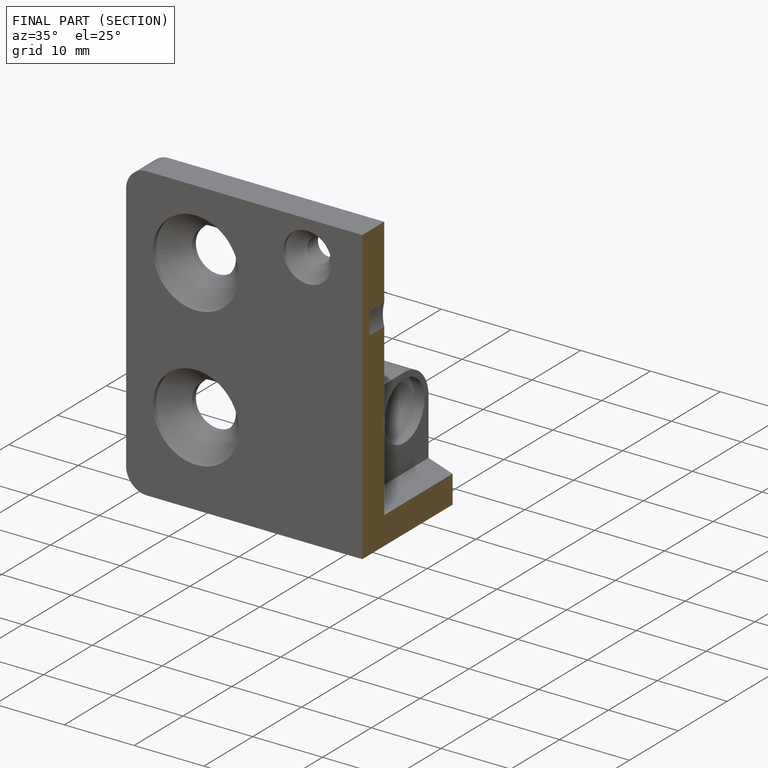
[diagram: finished part — half-section view (interior)]
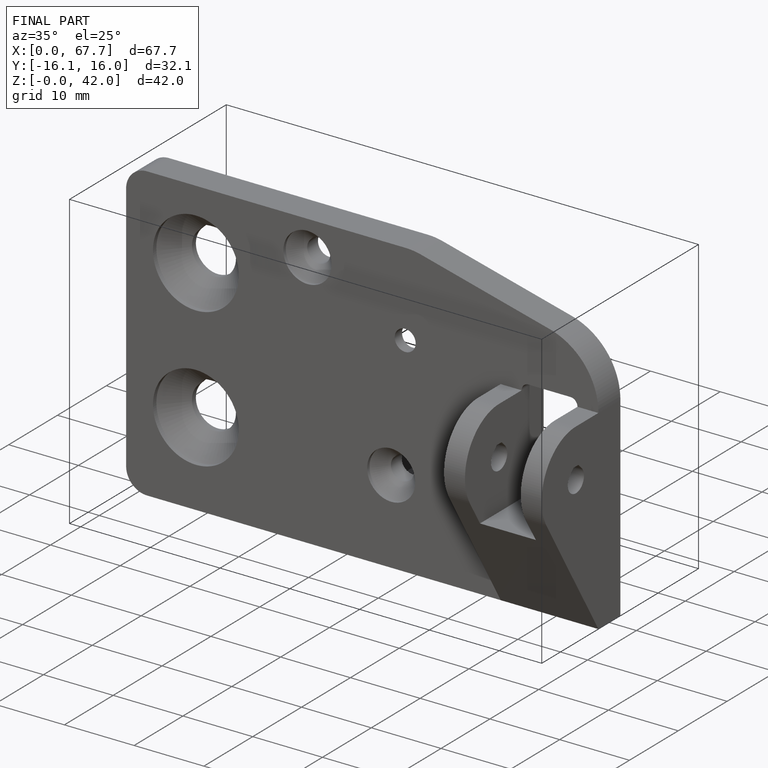
[diagram: finished part — iso view with bounding-box wireframe]
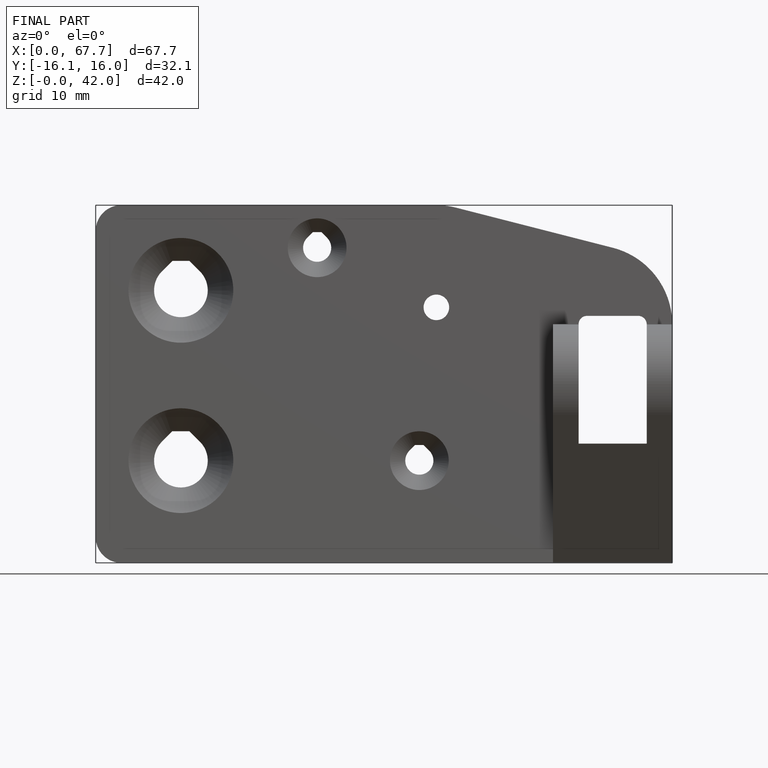
[diagram: finished part — front view with bounding-box wireframe]
